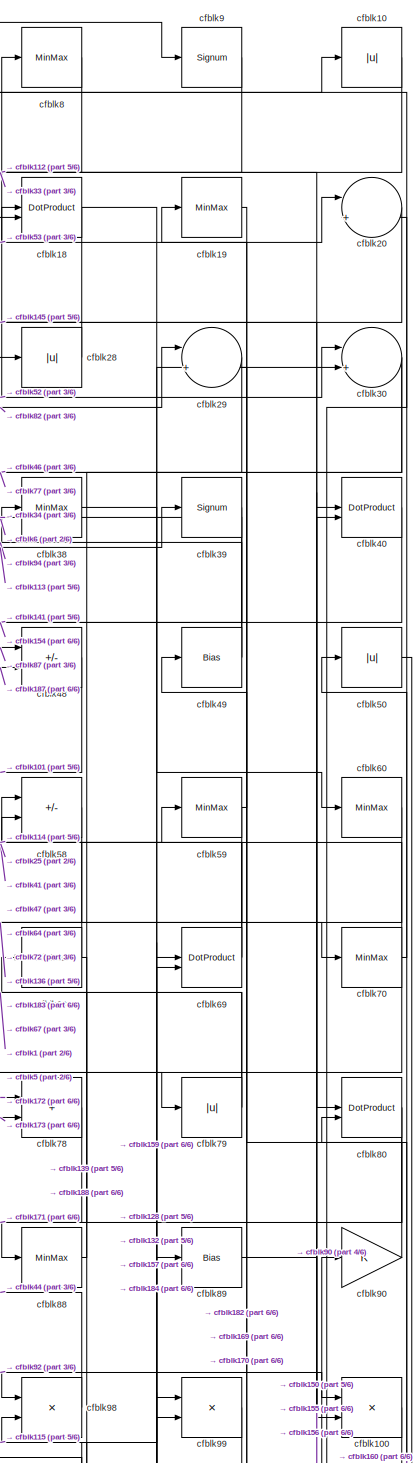
[diagram: root canvas - part 1/6, top right region]
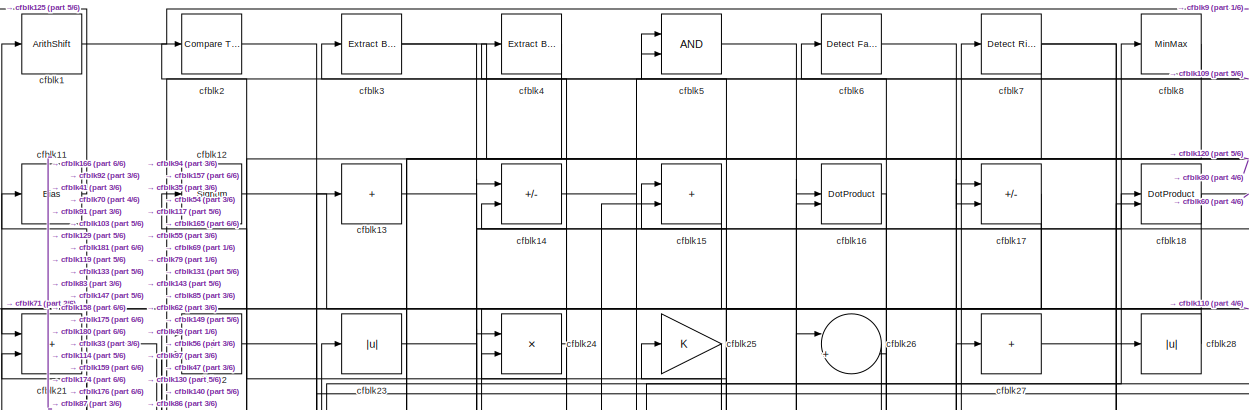
[diagram: root canvas - part 2/6, full width, top band]
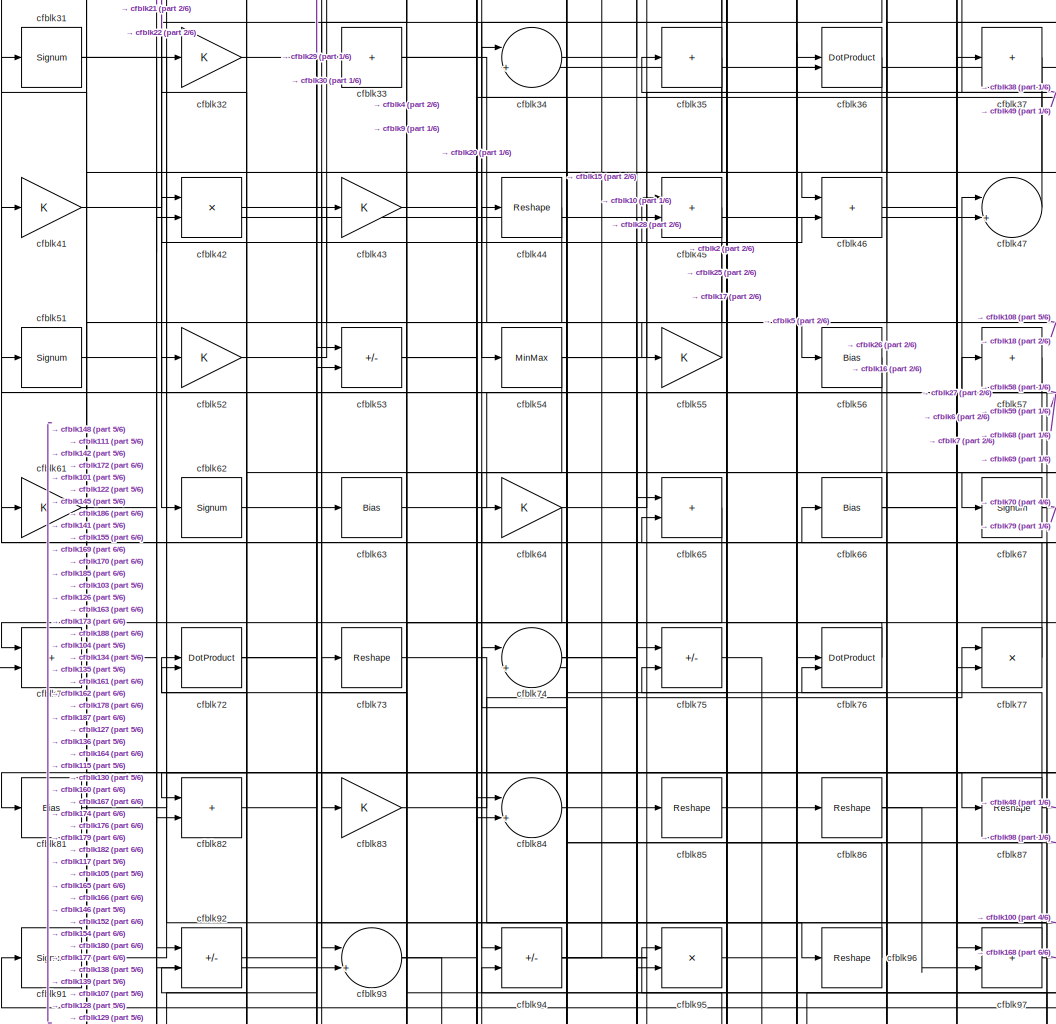
[diagram: root canvas - part 3/6, central region]
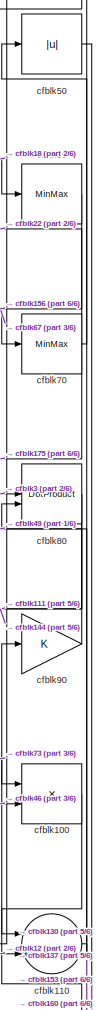
[diagram: root canvas - part 4/6, middle right region]
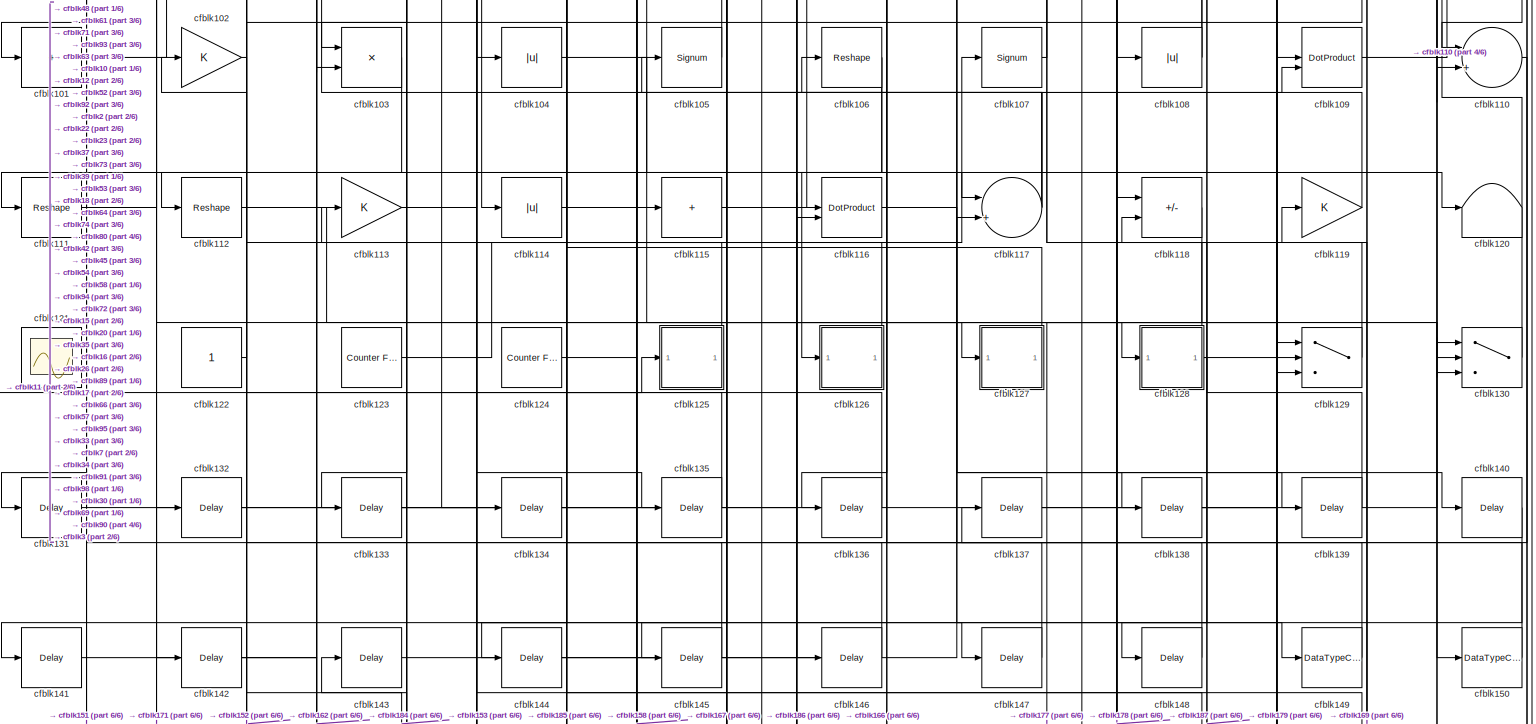
[diagram: root canvas - part 5/6, full width, middle band]
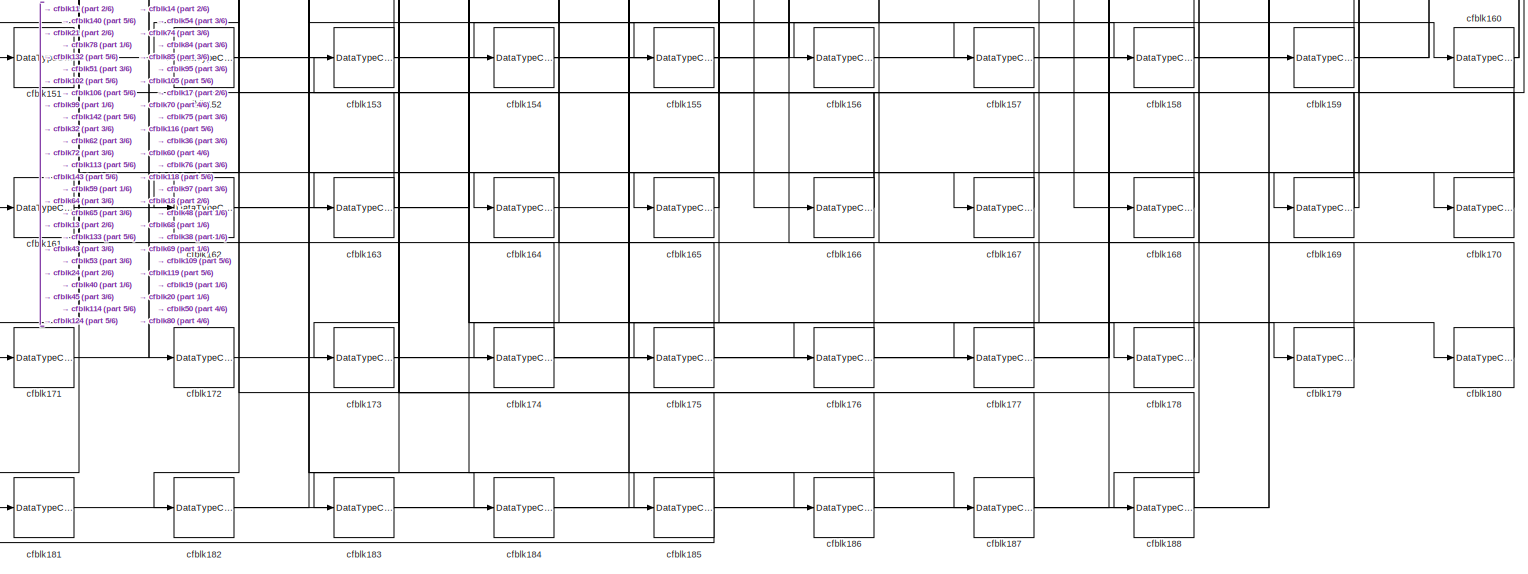
[diagram: root canvas - part 6/6, full width, bottom band]
MODEL slx_7a360d3ae012
KIND model
CONFIG AbsTol = auto
CONFIG EnableMultiTasking = off
CONFIG FixedStep = auto
CONFIG MaxStep = auto
CONFIG MinStep = auto
CONFIG RelTol = 1e-3
CONFIG SampleTimeConstraint = Unconstrained
CONFIG SolverName = VariableStepAuto
CONFIG StartTime = 0.0
CONFIG StopTime = 10.0
BLOCK [ArithShift] cfblk1
  BitShiftNumber = 8
  InputPortMap = u0
BLOCK [Abs] cfblk10
  SaturateOnIntegerOverflow = off
BLOCK [Product] cfblk100
  Inputs = */
  RndMeth = Zero
  SaturateOnIntegerOverflow = on
BLOCK [Sum] cfblk101
  IconShape = rectangular
  Inputs = +
BLOCK [Gain] cfblk102
BLOCK [Product] cfblk103
  Inputs = */
  RndMeth = Zero
  SaturateOnIntegerOverflow = on
BLOCK [Abs] cfblk104
  SaturateOnIntegerOverflow = off
BLOCK [Signum] cfblk105
BLOCK [Reshape] cfblk106
BLOCK [Signum] cfblk107
BLOCK [Abs] cfblk108
  SaturateOnIntegerOverflow = off
BLOCK [DotProduct] cfblk109
  OutDataTypeStr = Inherit: Inherit via internal rule
BLOCK [Bias] cfblk11
  Bias = 0.0
  SaturateOnIntegerOverflow = off
BLOCK [Sum] cfblk110
  Inputs = |++
BLOCK [Reshape] cfblk111
BLOCK [Reshape] cfblk112
BLOCK [Gain] cfblk113
BLOCK [Abs] cfblk114
  SaturateOnIntegerOverflow = off
BLOCK [Sum] cfblk115
  IconShape = rectangular
  Inputs = +
BLOCK [DotProduct] cfblk116
  OutDataTypeStr = Inherit: Inherit via internal rule
BLOCK [Sum] cfblk117
  Inputs = |++
BLOCK [Sum] cfblk118
  IconShape = rectangular
  Inputs = +-
BLOCK [Gain] cfblk119
BLOCK [Signum] cfblk12
BLOCK [Terminator] cfblk120
BLOCK [Scope] cfblk121
  Floating = on
  NumInputPorts = 1
  ScopeSpecificationString = Simulink.scopes.TimeScopeBlockCfg('CurrentConfiguration', extmgr.ConfigurationSet(extmgr.Configuration('Core','General UI',true,'FigureColor',[0.156862745098039 0.156862745098039 0.156862745098039]),extmgr.Configuration('Core','Source UI',true),extmgr.Configuration('Sources','WiredSimulink',true,'DataLoggingVariableName','ScopeData1','DataLoggingSaveFormat','StructureWithTime','DataLoggingLimitDat...<+2713ch>
BLOCK [Constant] cfblk122
  SampleTime = -1
BLOCK [Reference] cfblk123  REF=hdlsllib/Sources/Counter
Free-Running
  SourceBlock = hdlsllib/Sources/Counter\nFree-Running
  SourceType = Counter Free-Running
BLOCK [Reference] cfblk124  REF=hdlsllib/Sources/Counter
Free-Running
  SourceBlock = hdlsllib/Sources/Counter\nFree-Running
  SourceType = Counter Free-Running
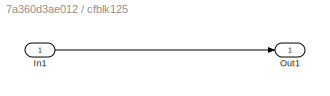
BLOCK [SubSystem] cfblk125
  LibrarySourceBlock = hdlsllib/Ports &\nSubsystems/Subsystem
BLOCK [Inport] cfblk125/In1
BLOCK [Outport] cfblk125/Out1
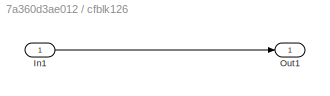
BLOCK [SubSystem] cfblk126
  LibrarySourceBlock = hdlsllib/Ports &\nSubsystems/Subsystem
BLOCK [Inport] cfblk126/In1
BLOCK [Outport] cfblk126/Out1
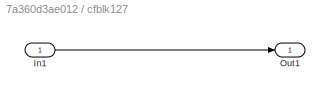
BLOCK [SubSystem] cfblk127
  LibrarySourceBlock = hdlsllib/Ports &\nSubsystems/Subsystem
BLOCK [Inport] cfblk127/In1
BLOCK [Outport] cfblk127/Out1
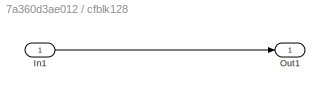
BLOCK [SubSystem] cfblk128
  LibrarySourceBlock = hdlsllib/Ports &\nSubsystems/Subsystem
BLOCK [Inport] cfblk128/In1
BLOCK [Outport] cfblk128/Out1
BLOCK [Switch] cfblk129
  InputSameDT = off
  SaturateOnIntegerOverflow = off
BLOCK [Sum] cfblk13
  IconShape = rectangular
  Inputs = +
BLOCK [Switch] cfblk130
  InputSameDT = off
  SaturateOnIntegerOverflow = off
BLOCK [Delay] cfblk131
  InputPortMap = u0
  SampleTime = 1
BLOCK [Delay] cfblk132
  InputPortMap = u0
  SampleTime = 1
BLOCK [Delay] cfblk133
  InputPortMap = u0
  SampleTime = 1
BLOCK [Delay] cfblk134
  InputPortMap = u0
  SampleTime = 1
BLOCK [Delay] cfblk135
  InputPortMap = u0
  SampleTime = 1
BLOCK [Delay] cfblk136
  InputPortMap = u0
  SampleTime = 1
BLOCK [Delay] cfblk137
  InputPortMap = u0
  SampleTime = 1
BLOCK [Delay] cfblk138
  InputPortMap = u0
  SampleTime = 1
BLOCK [Delay] cfblk139
  InputPortMap = u0
  SampleTime = 1
BLOCK [Sum] cfblk14
  IconShape = rectangular
  Inputs = +-
BLOCK [Delay] cfblk140
  InputPortMap = u0
  SampleTime = 1
BLOCK [Delay] cfblk141
  InputPortMap = u0
  SampleTime = 1
BLOCK [Delay] cfblk142
  InputPortMap = u0
  SampleTime = 1
BLOCK [Delay] cfblk143
  InputPortMap = u0
  SampleTime = 1
BLOCK [Delay] cfblk144
  InputPortMap = u0
  SampleTime = 1
BLOCK [Delay] cfblk145
  InputPortMap = u0
  SampleTime = 1
BLOCK [Delay] cfblk146
  InputPortMap = u0
  SampleTime = 1
BLOCK [Delay] cfblk147
  InputPortMap = u0
  SampleTime = 1
BLOCK [Delay] cfblk148
  InputPortMap = u0
  SampleTime = 1
BLOCK [DataTypeConversion] cfblk149
  OutDataTypeStr = uint8
  RndMeth = Floor
  SaturateOnIntegerOverflow = off
BLOCK [Sum] cfblk15
  IconShape = rectangular
BLOCK [DataTypeConversion] cfblk150
  OutDataTypeStr = uint8
  RndMeth = Floor
  SaturateOnIntegerOverflow = off
BLOCK [DataTypeConversion] cfblk151
  OutDataTypeStr = uint8
  RndMeth = Floor
  SaturateOnIntegerOverflow = off
BLOCK [DataTypeConversion] cfblk152
  OutDataTypeStr = uint8
  RndMeth = Floor
  SaturateOnIntegerOverflow = off
BLOCK [DataTypeConversion] cfblk153
  OutDataTypeStr = uint8
  RndMeth = Floor
  SaturateOnIntegerOverflow = off
BLOCK [DataTypeConversion] cfblk154
  OutDataTypeStr = uint8
  RndMeth = Floor
  SaturateOnIntegerOverflow = off
BLOCK [DataTypeConversion] cfblk155
  OutDataTypeStr = uint8
  RndMeth = Floor
  SaturateOnIntegerOverflow = off
BLOCK [DataTypeConversion] cfblk156
  OutDataTypeStr = uint8
  RndMeth = Floor
  SaturateOnIntegerOverflow = off
BLOCK [DataTypeConversion] cfblk157
  OutDataTypeStr = uint8
  RndMeth = Floor
  SaturateOnIntegerOverflow = off
BLOCK [DataTypeConversion] cfblk158
  OutDataTypeStr = uint8
  RndMeth = Floor
  SaturateOnIntegerOverflow = off
BLOCK [DataTypeConversion] cfblk159
  OutDataTypeStr = uint8
  RndMeth = Floor
  SaturateOnIntegerOverflow = off
BLOCK [DotProduct] cfblk16
  OutDataTypeStr = Inherit: Inherit via internal rule
BLOCK [DataTypeConversion] cfblk160
  RndMeth = Floor
  SaturateOnIntegerOverflow = off
BLOCK [DataTypeConversion] cfblk161
  OutDataTypeStr = uint8
  RndMeth = Floor
  SaturateOnIntegerOverflow = off
BLOCK [DataTypeConversion] cfblk162
  OutDataTypeStr = uint8
  RndMeth = Floor
  SaturateOnIntegerOverflow = off
BLOCK [DataTypeConversion] cfblk163
  OutDataTypeStr = uint8
  RndMeth = Floor
  SaturateOnIntegerOverflow = off
BLOCK [DataTypeConversion] cfblk164
  OutDataTypeStr = uint8
  RndMeth = Floor
  SaturateOnIntegerOverflow = off
BLOCK [DataTypeConversion] cfblk165
  OutDataTypeStr = uint8
  RndMeth = Floor
  SaturateOnIntegerOverflow = off
BLOCK [DataTypeConversion] cfblk166
  RndMeth = Floor
  SaturateOnIntegerOverflow = off
BLOCK [DataTypeConversion] cfblk167
  OutDataTypeStr = uint8
  RndMeth = Floor
  SaturateOnIntegerOverflow = off
BLOCK [DataTypeConversion] cfblk168
  OutDataTypeStr = uint8
  RndMeth = Floor
  SaturateOnIntegerOverflow = off
BLOCK [DataTypeConversion] cfblk169
  RndMeth = Floor
  SaturateOnIntegerOverflow = off
BLOCK [Sum] cfblk17
  IconShape = rectangular
  Inputs = +-
BLOCK [DataTypeConversion] cfblk170
  OutDataTypeStr = uint8
  RndMeth = Floor
  SaturateOnIntegerOverflow = off
BLOCK [DataTypeConversion] cfblk171
  OutDataTypeStr = uint8
  RndMeth = Floor
  SaturateOnIntegerOverflow = off
BLOCK [DataTypeConversion] cfblk172
  OutDataTypeStr = uint8
  RndMeth = Floor
  SaturateOnIntegerOverflow = off
BLOCK [DataTypeConversion] cfblk173
  OutDataTypeStr = uint8
  RndMeth = Floor
  SaturateOnIntegerOverflow = off
BLOCK [DataTypeConversion] cfblk174
  RndMeth = Floor
  SaturateOnIntegerOverflow = off
BLOCK [DataTypeConversion] cfblk175
  OutDataTypeStr = uint8
  RndMeth = Floor
  SaturateOnIntegerOverflow = off
BLOCK [DataTypeConversion] cfblk176
  OutDataTypeStr = uint8
  RndMeth = Floor
  SaturateOnIntegerOverflow = off
BLOCK [DataTypeConversion] cfblk177
  OutDataTypeStr = uint8
  RndMeth = Floor
  SaturateOnIntegerOverflow = off
BLOCK [DataTypeConversion] cfblk178
  OutDataTypeStr = uint8
  RndMeth = Floor
  SaturateOnIntegerOverflow = off
BLOCK [DataTypeConversion] cfblk179
  OutDataTypeStr = uint8
  RndMeth = Floor
  SaturateOnIntegerOverflow = off
BLOCK [DotProduct] cfblk18
  OutDataTypeStr = Inherit: Inherit via internal rule
BLOCK [DataTypeConversion] cfblk180
  OutDataTypeStr = uint8
  RndMeth = Floor
  SaturateOnIntegerOverflow = off
BLOCK [DataTypeConversion] cfblk181
  OutDataTypeStr = uint8
  RndMeth = Floor
  SaturateOnIntegerOverflow = off
BLOCK [DataTypeConversion] cfblk182
  OutDataTypeStr = uint8
  RndMeth = Floor
  SaturateOnIntegerOverflow = off
BLOCK [DataTypeConversion] cfblk183
  OutDataTypeStr = uint8
  RndMeth = Floor
  SaturateOnIntegerOverflow = off
BLOCK [DataTypeConversion] cfblk184
  OutDataTypeStr = uint8
  RndMeth = Floor
  SaturateOnIntegerOverflow = off
BLOCK [DataTypeConversion] cfblk185
  RndMeth = Floor
  SaturateOnIntegerOverflow = off
BLOCK [DataTypeConversion] cfblk186
  OutDataTypeStr = uint8
  RndMeth = Floor
  SaturateOnIntegerOverflow = off
BLOCK [DataTypeConversion] cfblk187
  RndMeth = Floor
  SaturateOnIntegerOverflow = off
BLOCK [DataTypeConversion] cfblk188
  OutDataTypeStr = uint8
  RndMeth = Floor
  SaturateOnIntegerOverflow = off
BLOCK [MinMax] cfblk19
BLOCK [Reference] cfblk2  REF=hdlsllib/Logic and Bit
Operations/Compare
To Constant
  SourceBlock = hdlsllib/Logic and Bit\nOperations/Compare\nTo Constant
  SourceType = Compare To Constant
BLOCK [Sum] cfblk20
  Inputs = |++
BLOCK [Sum] cfblk21
  IconShape = rectangular
BLOCK [Sum] cfblk22
  IconShape = rectangular
  Inputs = +-
BLOCK [Abs] cfblk23
  SaturateOnIntegerOverflow = off
BLOCK [Product] cfblk24
  Inputs = */
  RndMeth = Zero
  SaturateOnIntegerOverflow = on
BLOCK [Gain] cfblk25
BLOCK [Sum] cfblk26
  Inputs = |++
BLOCK [Sum] cfblk27
  IconShape = rectangular
  Inputs = +
BLOCK [Abs] cfblk28
  SaturateOnIntegerOverflow = off
BLOCK [Sum] cfblk29
  Inputs = |++
BLOCK [Reference] cfblk3  REF=simulink/Logic and Bit
Operations/Extract Bits
  LibrarySourceBlock = hdlsllib/Logic and Bit\nOperations/Extract Bits
  SourceBlock = simulink/Logic and Bit\nOperations/Extract Bits
  SourceType = Extract Bits
BLOCK [Sum] cfblk30
  Inputs = |++
BLOCK [Signum] cfblk31
BLOCK [Gain] cfblk32
BLOCK [Sum] cfblk33
  IconShape = rectangular
  Inputs = +
BLOCK [Sum] cfblk34
  Inputs = |++
BLOCK [Sum] cfblk35
  IconShape = rectangular
  Inputs = +
BLOCK [DotProduct] cfblk36
  OutDataTypeStr = Inherit: Inherit via internal rule
BLOCK [Sum] cfblk37
  IconShape = rectangular
  Inputs = +
BLOCK [MinMax] cfblk38
BLOCK [Signum] cfblk39
BLOCK [Reference] cfblk4  REF=simulink/Logic and Bit
Operations/Extract Bits
  LibrarySourceBlock = hdlsllib/Logic and Bit\nOperations/Extract Bits
  SourceBlock = simulink/Logic and Bit\nOperations/Extract Bits
  SourceType = Extract Bits
BLOCK [DotProduct] cfblk40
  OutDataTypeStr = Inherit: Inherit via internal rule
BLOCK [Gain] cfblk41
BLOCK [Product] cfblk42
  Inputs = */
  RndMeth = Zero
  SaturateOnIntegerOverflow = on
BLOCK [Gain] cfblk43
BLOCK [Reshape] cfblk44
BLOCK [Sum] cfblk45
  IconShape = rectangular
BLOCK [Sum] cfblk46
  IconShape = rectangular
BLOCK [Sum] cfblk47
  Inputs = |++
BLOCK [Sum] cfblk48
  IconShape = rectangular
  Inputs = +-
BLOCK [Bias] cfblk49
  Bias = 0.0
  SaturateOnIntegerOverflow = off
BLOCK [Logic] cfblk5
  AllPortsSameDT = off
  OutDataTypeStr = boolean
BLOCK [Abs] cfblk50
  SaturateOnIntegerOverflow = off
BLOCK [Signum] cfblk51
BLOCK [Gain] cfblk52
BLOCK [Sum] cfblk53
  IconShape = rectangular
  Inputs = +-
BLOCK [MinMax] cfblk54
BLOCK [Gain] cfblk55
BLOCK [Bias] cfblk56
  Bias = 0.0
  SaturateOnIntegerOverflow = off
BLOCK [Sum] cfblk57
  IconShape = rectangular
  Inputs = +
BLOCK [Sum] cfblk58
  IconShape = rectangular
  Inputs = +-
BLOCK [MinMax] cfblk59
BLOCK [Reference] cfblk6  REF=hdlsllib/Logic and Bit
Operations/Detect Fall
Negative
  SourceBlock = hdlsllib/Logic and Bit\nOperations/Detect Fall\nNegative
  SourceType = Detect Fall Negative
BLOCK [MinMax] cfblk60
BLOCK [Gain] cfblk61
BLOCK [Signum] cfblk62
BLOCK [Bias] cfblk63
  Bias = 0.0
  SaturateOnIntegerOverflow = off
BLOCK [Gain] cfblk64
BLOCK [Sum] cfblk65
  IconShape = rectangular
BLOCK [Bias] cfblk66
  Bias = 0.0
  SaturateOnIntegerOverflow = off
BLOCK [Signum] cfblk67
BLOCK [MinMax] cfblk68
BLOCK [DotProduct] cfblk69
  OutDataTypeStr = Inherit: Inherit via internal rule
BLOCK [Reference] cfblk7  REF=hdlsllib/Logic and Bit
Operations/Detect Rise
Positive
  SourceBlock = hdlsllib/Logic and Bit\nOperations/Detect Rise\nPositive
  SourceType = Detect Rise Positive
BLOCK [MinMax] cfblk70
BLOCK [Sum] cfblk71
  IconShape = rectangular
BLOCK [DotProduct] cfblk72
  OutDataTypeStr = Inherit: Inherit via internal rule
BLOCK [Reshape] cfblk73
BLOCK [Sum] cfblk74
  Inputs = |++
BLOCK [Sum] cfblk75
  IconShape = rectangular
  Inputs = +-
BLOCK [DotProduct] cfblk76
  OutDataTypeStr = Inherit: Inherit via internal rule
BLOCK [Product] cfblk77
  Inputs = */
  RndMeth = Zero
  SaturateOnIntegerOverflow = on
BLOCK [Sum] cfblk78
  IconShape = rectangular
BLOCK [Abs] cfblk79
  SaturateOnIntegerOverflow = off
BLOCK [MinMax] cfblk8
BLOCK [DotProduct] cfblk80
  OutDataTypeStr = Inherit: Inherit via internal rule
BLOCK [Bias] cfblk81
  Bias = 0.0
  SaturateOnIntegerOverflow = off
BLOCK [Sum] cfblk82
  IconShape = rectangular
BLOCK [Gain] cfblk83
BLOCK [Sum] cfblk84
  Inputs = |++
BLOCK [Reshape] cfblk85
BLOCK [Reshape] cfblk86
BLOCK [Reshape] cfblk87
BLOCK [MinMax] cfblk88
BLOCK [Bias] cfblk89
  Bias = 0.0
  SaturateOnIntegerOverflow = off
BLOCK [Signum] cfblk9
BLOCK [Gain] cfblk90
BLOCK [Signum] cfblk91
BLOCK [Sum] cfblk92
  IconShape = rectangular
  Inputs = +-
BLOCK [Sum] cfblk93
  Inputs = |++
BLOCK [Sum] cfblk94
  IconShape = rectangular
  Inputs = +-
BLOCK [Product] cfblk95
  Inputs = */
  RndMeth = Zero
  SaturateOnIntegerOverflow = on
BLOCK [Reshape] cfblk96
BLOCK [Sum] cfblk97
  IconShape = rectangular
BLOCK [Product] cfblk98
  Inputs = */
  RndMeth = Zero
  SaturateOnIntegerOverflow = on
BLOCK [Product] cfblk99
  Inputs = */
  RndMeth = Zero
  SaturateOnIntegerOverflow = on
LINE cfblk100:1 -> cfblk110:1
LINE cfblk101:1 -> cfblk63:1
LINE cfblk102:1 -> cfblk152:1
LINE cfblk103:1 -> cfblk131:1
LINE cfblk104:1 -> cfblk127:1
LINE cfblk105:1 -> cfblk72:1
NET cfblk106:1 -> cfblk126:1, cfblk162:1
LINE cfblk107:1 -> cfblk57:1
NET cfblk108:1 -> cfblk34:1, cfblk91:1
LINE cfblk109:1 -> cfblk3:1
LINE cfblk10:1 -> cfblk112:1
LINE cfblk110:1 -> cfblk137:1
LINE cfblk111:1 -> cfblk93:2
LINE cfblk112:1 -> cfblk129:3
LINE cfblk113:1 -> cfblk39:1
NET cfblk114:1 -> cfblk109:2, cfblk186:1, cfblk58:2
LINE cfblk115:1 -> cfblk89:1
LINE cfblk116:1 -> cfblk149:1
NET cfblk117:1 -> cfblk106:1, cfblk15:1, cfblk35:1
LINE cfblk118:1 -> cfblk177:1
LINE cfblk119:1 -> cfblk23:1
LINE cfblk11:1 -> cfblk125:1
LINE cfblk122:1 -> cfblk52:1
LINE cfblk123:1 -> cfblk107:1
LINE cfblk124:1 -> cfblk167:1
LINE cfblk125/In1:1 -> cfblk125/Out1:1
LINE cfblk125:1 -> cfblk12:1
LINE cfblk126/In1:1 -> cfblk126/Out1:1
LINE cfblk126:1 -> cfblk73:1
LINE cfblk127/In1:1 -> cfblk127/Out1:1
LINE cfblk127:1 -> cfblk64:1
LINE cfblk128/In1:1 -> cfblk128/Out1:1
NET cfblk128:1 -> cfblk148:1, cfblk30:2, cfblk95:1
LINE cfblk129:1 -> cfblk66:1
LINE cfblk12:1 -> cfblk110:2
LINE cfblk130:1 -> cfblk90:1
LINE cfblk131:1 -> cfblk26:1
LINE cfblk132:1 -> cfblk69:2
LINE cfblk133:1 -> cfblk158:1
LINE cfblk134:1 -> cfblk45:2
LINE cfblk135:1 -> cfblk92:2
LINE cfblk136:1 -> cfblk94:2
LINE cfblk137:1 -> cfblk130:1
LINE cfblk138:1 -> cfblk129:1
LINE cfblk139:1 -> cfblk98:2
LINE cfblk13:1 -> cfblk180:1
LINE cfblk140:1 -> cfblk151:1
LINE cfblk141:1 -> cfblk53:2
LINE cfblk142:1 -> cfblk184:1
LINE cfblk143:1 -> cfblk16:2
LINE cfblk144:1 -> cfblk117:2
LINE cfblk145:1 -> cfblk42:2
LINE cfblk146:1 -> cfblk74:1
LINE cfblk147:1 -> cfblk17:1
LINE cfblk148:1 -> cfblk61:1
LINE cfblk149:1 -> cfblk26:2
LINE cfblk14:1 -> cfblk157:1
LINE cfblk150:1 -> cfblk116:1
LINE cfblk151:1 -> cfblk116:2
LINE cfblk152:1 -> cfblk36:2
LINE cfblk153:1 -> cfblk102:1
LINE cfblk154:1 -> cfblk36:1
LINE cfblk155:1 -> cfblk40:1
LINE cfblk156:1 -> cfblk40:2
LINE cfblk157:1 -> cfblk69:1
LINE cfblk158:1 -> cfblk14:1
LINE cfblk159:1 -> cfblk14:2
LINE cfblk15:1 -> cfblk71:2
NET cfblk160:1 -> cfblk181:1, cfblk20:2, cfblk80:2
LINE cfblk161:1 -> cfblk84:1
LINE cfblk162:1 -> cfblk84:2
LINE cfblk163:1 -> cfblk72:2
LINE cfblk164:1 -> cfblk65:1
LINE cfblk165:1 -> cfblk65:2
NET cfblk166:1 -> cfblk105:1, cfblk11:1
LINE cfblk167:1 -> cfblk75:1
LINE cfblk168:1 -> cfblk75:2
NET cfblk169:1 -> cfblk109:1, cfblk119:1, cfblk53:1
LINE cfblk16:1 -> cfblk56:1
LINE cfblk170:1 -> cfblk19:1
LINE cfblk171:1 -> cfblk132:1
LINE cfblk172:1 -> cfblk78:1
LINE cfblk173:1 -> cfblk78:2
NET cfblk174:1 -> cfblk18:2, cfblk21:2, cfblk95:2
LINE cfblk175:1 -> cfblk24:1
LINE cfblk176:1 -> cfblk24:2
LINE cfblk177:1 -> cfblk76:2
LINE cfblk178:1 -> cfblk118:1
LINE cfblk179:1 -> cfblk118:2
NET cfblk17:1 -> cfblk165:1, cfblk55:1
LINE cfblk180:1 -> cfblk76:1
LINE cfblk181:1 -> cfblk13:1
LINE cfblk182:1 -> cfblk85:1
LINE cfblk183:1 -> cfblk99:1
LINE cfblk184:1 -> cfblk99:2
NET cfblk185:1 -> cfblk143:1, cfblk161:1
LINE cfblk186:1 -> cfblk32:1
NET cfblk187:1 -> cfblk113:1, cfblk48:2
LINE cfblk188:1 -> cfblk43:1
NET cfblk18:1 -> cfblk114:1, cfblk60:1
LINE cfblk19:1 -> cfblk169:1
LINE cfblk1:1 -> cfblk9:1
LINE cfblk20:1 -> cfblk145:1
LINE cfblk21:1 -> cfblk92:1
LINE cfblk22:1 -> cfblk103:2
LINE cfblk23:1 -> cfblk147:1
LINE cfblk24:1 -> cfblk174:1
LINE cfblk25:1 -> cfblk54:1
LINE cfblk26:1 -> cfblk62:1
LINE cfblk27:1 -> cfblk8:1
LINE cfblk28:1 -> cfblk21:1
LINE cfblk29:1 -> cfblk88:1
LINE cfblk2:1 -> cfblk129:2
NET cfblk30:1 -> cfblk46:1, cfblk77:2
NET cfblk31:1 -> cfblk47:2, cfblk96:1
LINE cfblk32:1 -> cfblk185:1
NET cfblk33:1 -> cfblk108:1, cfblk18:1
LINE cfblk34:1 -> cfblk10:1
NET cfblk35:1 -> cfblk2:1, cfblk74:2, cfblk82:2
LINE cfblk36:1 -> cfblk93:1
LINE cfblk37:1 -> cfblk103:1
LINE cfblk38:1 -> cfblk159:1
LINE cfblk39:1 -> cfblk141:1
NET cfblk3:1 -> cfblk120:1, cfblk80:1
LINE cfblk40:1 -> cfblk154:1
LINE cfblk41:1 -> cfblk22:1
LINE cfblk42:1 -> cfblk115:1
LINE cfblk43:1 -> cfblk187:1
LINE cfblk44:1 -> cfblk81:1
LINE cfblk45:1 -> cfblk164:1
LINE cfblk46:1 -> cfblk100:2
LINE cfblk47:1 -> cfblk7:1
LINE cfblk48:1 -> cfblk101:1
NET cfblk49:1 -> cfblk34:2, cfblk6:1
LINE cfblk4:1 -> cfblk83:1
LINE cfblk50:1 -> cfblk153:1
LINE cfblk51:1 -> cfblk172:1
LINE cfblk52:1 -> cfblk30:1
NET cfblk53:1 -> cfblk104:1, cfblk178:1, cfblk20:1
NET cfblk54:1 -> cfblk130:2, cfblk179:1, cfblk28:1, cfblk82:1
LINE cfblk55:1 -> cfblk42:1
LINE cfblk56:1 -> cfblk94:1
LINE cfblk57:1 -> cfblk67:1
LINE cfblk58:1 -> cfblk136:1
NET cfblk59:1 -> cfblk183:1, cfblk29:2
LINE cfblk5:1 -> cfblk86:1
LINE cfblk60:1 -> cfblk156:1
LINE cfblk61:1 -> cfblk128:1
LINE cfblk62:1 -> cfblk170:1
LINE cfblk63:1 -> cfblk37:1
NET cfblk64:1 -> cfblk173:1, cfblk59:1
LINE cfblk65:1 -> cfblk163:1
NET cfblk66:1 -> cfblk138:1, cfblk139:1
NET cfblk67:1 -> cfblk70:1, cfblk79:1
NET cfblk68:1 -> cfblk188:1, cfblk47:1
NET cfblk69:1 -> cfblk25:1, cfblk41:1
LINE cfblk6:1 -> cfblk97:1
NET cfblk70:1 -> cfblk175:1, cfblk22:2, cfblk50:1
LINE cfblk71:1 -> cfblk142:1
NET cfblk72:1 -> cfblk155:1, cfblk58:1
LINE cfblk73:1 -> cfblk100:1
NET cfblk74:1 -> cfblk176:1, cfblk46:2
LINE cfblk75:1 -> cfblk166:1
LINE cfblk76:1 -> cfblk71:1
LINE cfblk77:1 -> cfblk31:1
LINE cfblk78:1 -> cfblk171:1
NET cfblk79:1 -> cfblk1:1, cfblk5:2
NET cfblk7:1 -> cfblk130:3, cfblk133:1, cfblk140:1
NET cfblk80:1 -> cfblk111:1, cfblk144:1
LINE cfblk81:1 -> cfblk87:1
LINE cfblk82:1 -> cfblk29:1
LINE cfblk83:1 -> cfblk77:1
LINE cfblk84:1 -> cfblk160:1
LINE cfblk85:1 -> cfblk16:1
NET cfblk86:1 -> cfblk27:1, cfblk97:2
NET cfblk87:1 -> cfblk48:1, cfblk4:1
LINE cfblk88:1 -> cfblk68:1
LINE cfblk89:1 -> cfblk150:1
LINE cfblk8:1 -> cfblk17:2
LINE cfblk90:1 -> cfblk49:1
LINE cfblk91:1 -> cfblk5:1
LINE cfblk92:1 -> cfblk98:1
NET cfblk93:1 -> cfblk134:1, cfblk135:1
NET cfblk94:1 -> cfblk117:1, cfblk15:2, cfblk38:1
LINE cfblk95:1 -> cfblk146:1
LINE cfblk96:1 -> cfblk51:1
NET cfblk97:1 -> cfblk168:1, cfblk45:1
LINE cfblk98:1 -> cfblk44:1
LINE cfblk99:1 -> cfblk182:1
LINE cfblk9:1 -> cfblk33:1
note: NET lines group one-source signal fan-out (src -> all destinations, sorted); 1:1 wires keep LINE
